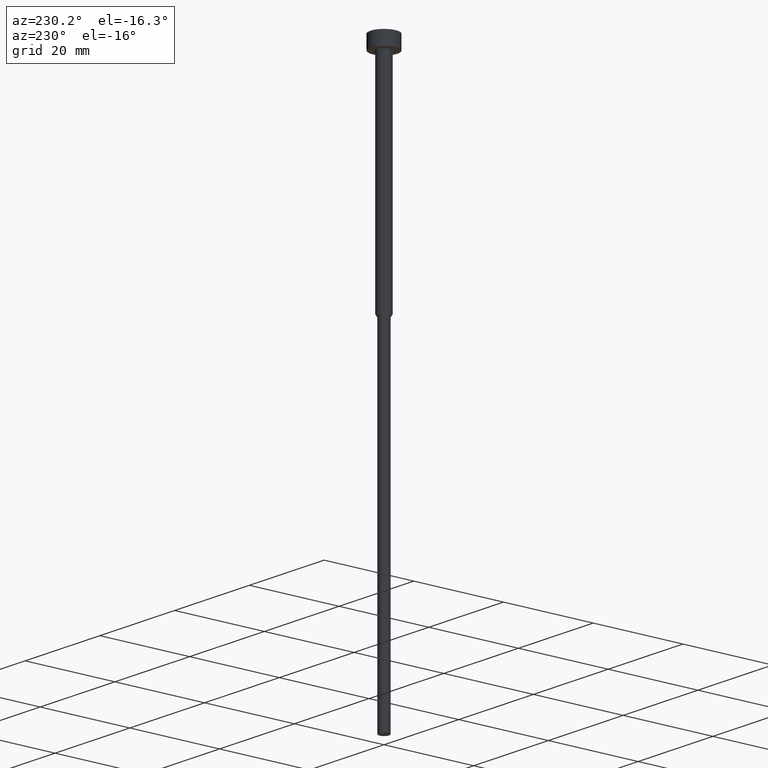
[diagram: clean part render]
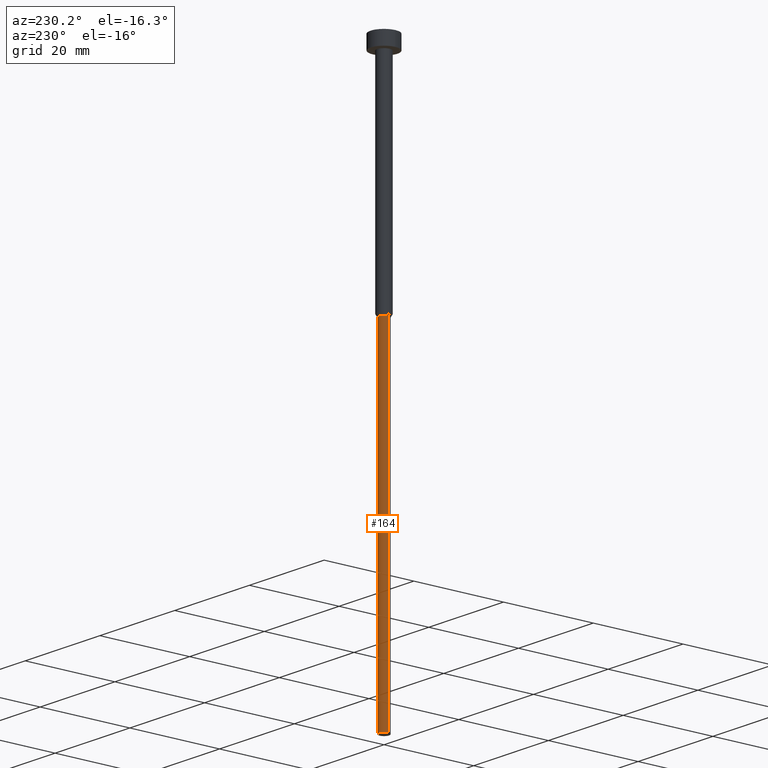
[diagram: same view with one face highlighted and labeled with its STEP entity id]
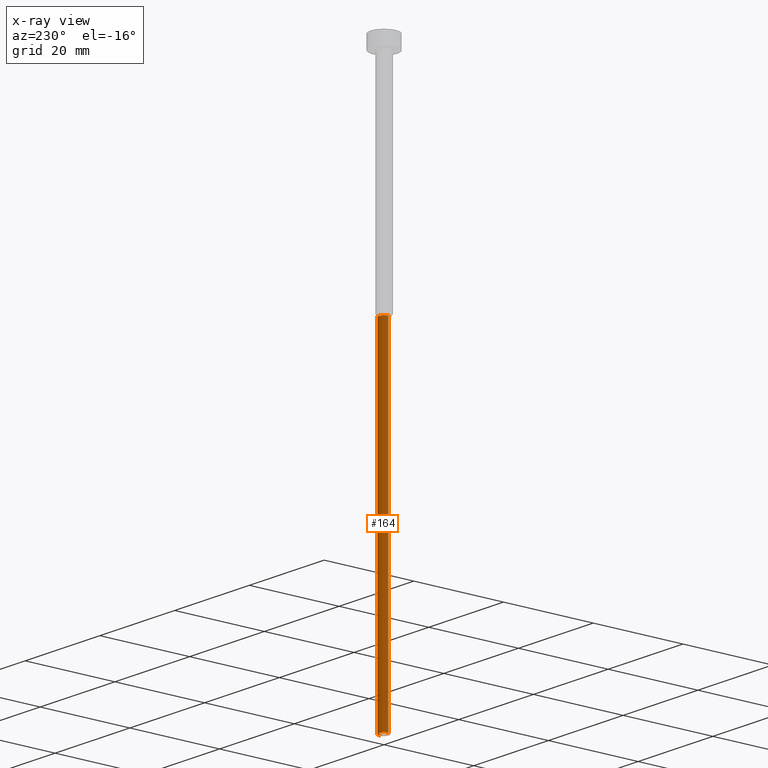
[diagram: x-ray of the same camera — body ghosted, the highlighted face saturated]
A machine part, auxiliary view. The second image highlights one B-rep face of the part: STEP entity #164.
The next image is the same camera in x-ray: the body ghosted, the highlighted face saturated — about 0% of this face is hidden behind the body in this view.
In plain terms, the highlighted cylindrical surface (edge-blend (fillet) strip) has radius 1.15 mm, axis along (-0, -0, 1).
Its self-contained STEP definition (entity closure, byte-faithful):
#1 = FACE_OUTER_BOUND ( 'NONE', #271, .T. ) ;
#4 = DIRECTION ( 'NONE',  ( 1.000000000000000000, 0.000000000000000000, 0.000000000000000000 ) ) ;
#19 = CARTESIAN_POINT ( 'NONE',  ( 0.000000000000000000, 0.000000000000000000, -50.60621778264910375 ) ) ;
#22 = DIRECTION ( 'NONE',  ( -0.000000000000000000, -0.000000000000000000, 1.000000000000000000 ) ) ;
#29 = CARTESIAN_POINT ( 'NONE',  ( -1.149999999999999911, 1.408343819019456028E-16, -125.0000000000000000 ) ) ;
#38 = DIRECTION ( 'NONE',  ( -0.000000000000000000, -0.000000000000000000, 1.000000000000000000 ) ) ;
#45 = LINE ( 'NONE', #240, #233 ) ;
#49 = DIRECTION ( 'NONE',  ( -0.000000000000000000, -0.000000000000000000, 1.000000000000000000 ) ) ;
#63 = ORIENTED_EDGE ( 'NONE', *, *, #329, .T. ) ;
#94 = CARTESIAN_POINT ( 'NONE',  ( -1.149999999999999911, 1.408343819019456028E-16, -50.60621778264910375 ) ) ;
#104 = ORIENTED_EDGE ( 'NONE', *, *, #133, .F. ) ;
#105 = AXIS2_PLACEMENT_3D ( 'NONE', #19, #237, #296 ) ;
#125 = CYLINDRICAL_SURFACE ( 'NONE', #256, 1.149999999999999911 ) ;
#126 = CARTESIAN_POINT ( 'NONE',  ( 0.000000000000000000, 0.000000000000000000, 0.000000000000000000 ) ) ;
#133 = EDGE_CURVE ( 'NONE', #186, #297, #209, .T. ) ;
#134 = AXIS2_PLACEMENT_3D ( 'NONE', #263, #38, #344 ) ;
#143 = CARTESIAN_POINT ( 'NONE',  ( 1.149999999999999911, 0.000000000000000000, -125.0000000000000000 ) ) ;
#146 = CIRCLE ( 'NONE', #105, 1.149999999999999911 ) ;
#155 = EDGE_CURVE ( 'NONE', #297, #332, #146, .T. ) ;
#164 = ADVANCED_FACE ( 'NONE', ( #1 ), #125, .T. ) ;
#179 = CARTESIAN_POINT ( 'NONE',  ( 1.149999999999999911, 0.000000000000000000, 0.000000000000000000 ) ) ;
#180 = ORIENTED_EDGE ( 'NONE', *, *, #185, .T. ) ;
#185 = EDGE_CURVE ( 'NONE', #286, #332, #45, .T. ) ;
#186 = VERTEX_POINT ( 'NONE', #143 ) ;
#209 = LINE ( 'NONE', #179, #333 ) ;
#233 = VECTOR ( 'NONE', #49, 1000.000000000000000 ) ;
#237 = DIRECTION ( 'NONE',  ( -0.000000000000000000, -0.000000000000000000, 1.000000000000000000 ) ) ;
#240 = CARTESIAN_POINT ( 'NONE',  ( -1.149999999999999911, 1.408343819019456028E-16, 0.000000000000000000 ) ) ;
#243 = DIRECTION ( 'NONE',  ( -0.000000000000000000, -0.000000000000000000, 1.000000000000000000 ) ) ;
#249 = CARTESIAN_POINT ( 'NONE',  ( 1.149999999999999911, 0.000000000000000000, -50.60621778264910375 ) ) ;
#256 = AXIS2_PLACEMENT_3D ( 'NONE', #126, #243, #4 ) ;
#259 = ORIENTED_EDGE ( 'NONE', *, *, #155, .F. ) ;
#263 = CARTESIAN_POINT ( 'NONE',  ( 0.000000000000000000, 0.000000000000000000, -125.0000000000000000 ) ) ;
#271 = EDGE_LOOP ( 'NONE', ( #63, #180, #259, #104 ) ) ;
#272 = CIRCLE ( 'NONE', #134, 1.149999999999999911 ) ;
#286 = VERTEX_POINT ( 'NONE', #29 ) ;
#296 = DIRECTION ( 'NONE',  ( 1.000000000000000000, 0.000000000000000000, 0.000000000000000000 ) ) ;
#297 = VERTEX_POINT ( 'NONE', #249 ) ;
#329 = EDGE_CURVE ( 'NONE', #186, #286, #272, .T. ) ;
#332 = VERTEX_POINT ( 'NONE', #94 ) ;
#333 = VECTOR ( 'NONE', #22, 1000.000000000000000 ) ;
#344 = DIRECTION ( 'NONE',  ( 1.000000000000000000, 0.000000000000000000, 0.000000000000000000 ) ) ;